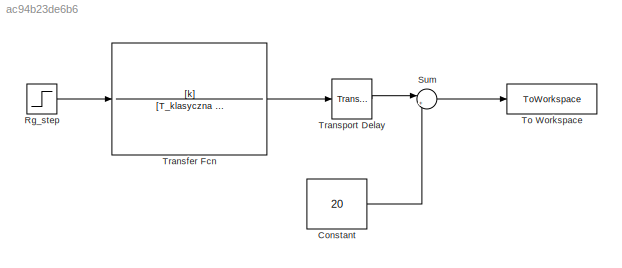
MODEL slx_ac94b23de6b6
KIND model
CONFIG AbsTol = auto
CONFIG EnableMultiTasking = off
CONFIG FixedStep = auto
CONFIG MaxStep = 5
CONFIG MinStep = auto
CONFIG RelTol = 1e-3
CONFIG SampleTimeConstraint = Unconstrained
CONFIG SolverName = VariableStepAuto
CONFIG StartTime = 0.0
CONFIG StopTime = 10.0
BLOCK [Constant] Constant
  Value = 20
BLOCK [Step] Rg_step
  After = dRz_g
  SampleTime = 0
  Time = skok_czas2
BLOCK [Sum] Sum
  Inputs = |++
  Ports = [2, 1]
BLOCK [ToWorkspace] To Workspace
  FixptAsFi = on
  MaxDataPoints = inf
  Ports = [1]
  SampleTime = -1
  VariableName = kupfmuller
BLOCK [TransferFcn] Transfer Fcn
  Denominator = [T_klasyczna 1]
  Numerator = [k]
BLOCK [TransportDelay] Transport Delay
  BufferSize = 32768
  DelayTime = T0_klasyczna
  Ports = [1, 1]
LINE Constant:1 -> Sum:2
LINE Rg_step:1 -> Transfer Fcn:1
LINE Sum:1 -> To Workspace:1
LINE Transfer Fcn:1 -> Transport Delay:1
LINE Transport Delay:1 -> Sum:1
